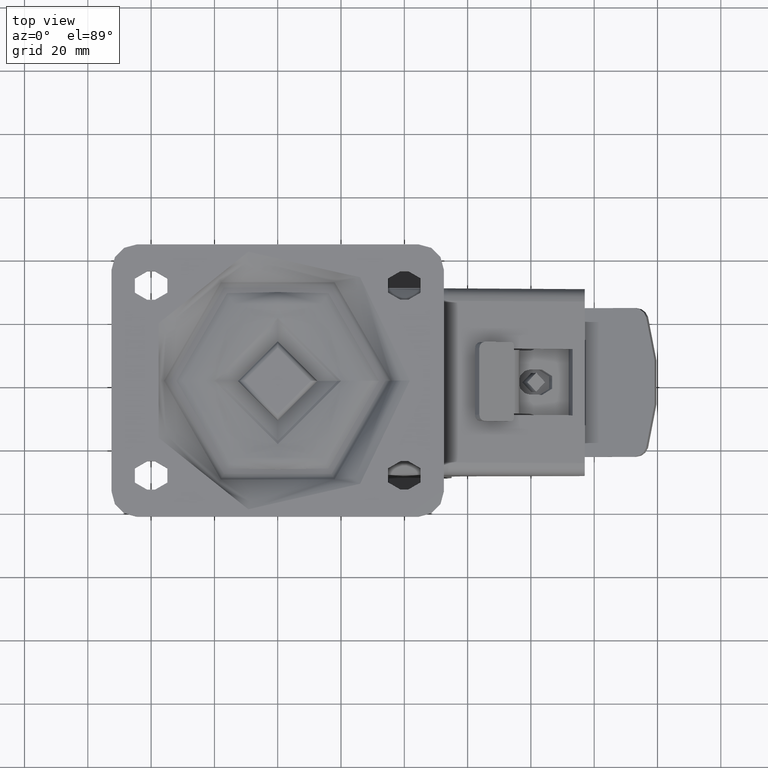
[diagram: clean part render]
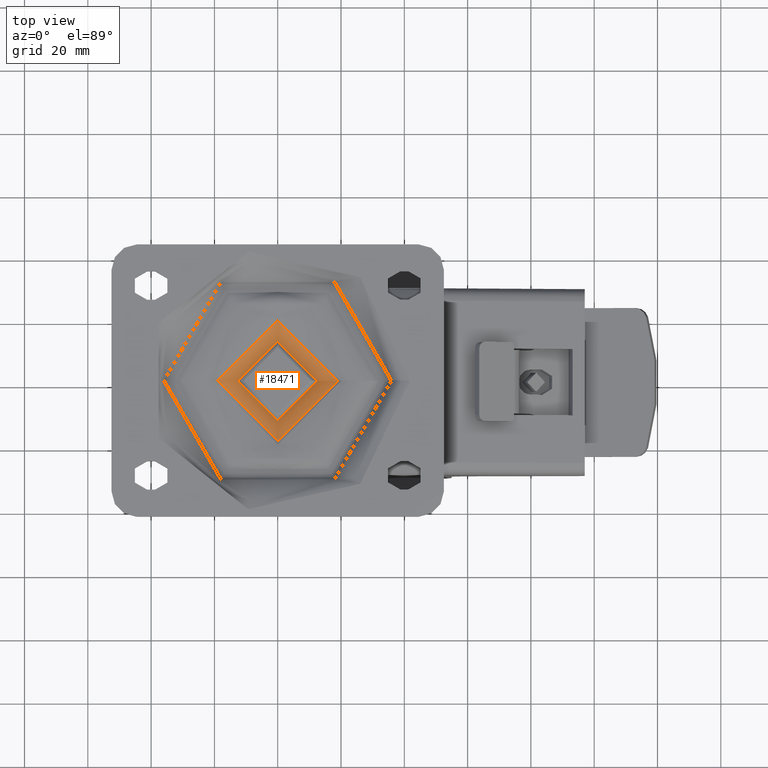
[diagram: same view with one face highlighted and labeled with its STEP entity id]
A machine part, top view. The second image highlights one B-rep face of the part: STEP entity #18471.
In plain terms, the highlighted conical surface has half-angle 69.559 deg.
Its self-contained STEP definition (entity closure, byte-faithful):
#2044=CONICAL_SURFACE('',#19886,15.75,1.21403014623623);
#2122=FACE_OUTER_BOUND('',#3262,.T.);
#3262=EDGE_LOOP('',(#12622,#12623,#12624,#12625));
#4558=LINE('',#26574,#5847);
#5847=VECTOR('',#21736,15.75);
#7147=CIRCLE('',#19885,19.);
#7148=CIRCLE('',#19887,12.5);
#7966=VERTEX_POINT('',#26568);
#7967=VERTEX_POINT('',#26572);
#9784=EDGE_CURVE('',#7966,#7966,#7147,.T.);
#9786=EDGE_CURVE('',#7967,#7967,#7148,.T.);
#9787=EDGE_CURVE('',#7967,#7966,#4558,.T.);
#12622=ORIENTED_EDGE('',*,*,#9786,.T.);
#12623=ORIENTED_EDGE('',*,*,#9787,.T.);
#12624=ORIENTED_EDGE('',*,*,#9784,.F.);
#12625=ORIENTED_EDGE('',*,*,#9787,.F.);
#18471=ADVANCED_FACE('',(#2122),#2044,.F.);
#19885=AXIS2_PLACEMENT_3D('',#26569,#21729,#21730);
#19886=AXIS2_PLACEMENT_3D('',#26571,#21732,#21733);
#19887=AXIS2_PLACEMENT_3D('',#26573,#21734,#21735);
#21729=DIRECTION('center_axis',(0.,0.,-1.));
#21730=DIRECTION('ref_axis',(-1.,0.,0.));
#21732=DIRECTION('center_axis',(0.,0.,1.));
#21733=DIRECTION('ref_axis',(-1.,0.,0.));
#21734=DIRECTION('center_axis',(0.,0.,-1.));
#21735=DIRECTION('ref_axis',(-1.,0.,0.));
#21736=DIRECTION('',(0.937031119349134,1.14753216101238E-16,0.349245875238791));
#26568=CARTESIAN_POINT('',(19.,2.32682891837997E-15,-6.57735026918963));
#26569=CARTESIAN_POINT('Origin',(0.,0.,-6.57735026918963));
#26571=CARTESIAN_POINT('Origin',(0.,0.,-7.78867513459481));
#26572=CARTESIAN_POINT('',(12.5,1.53080849893419E-15,-9.));
#26573=CARTESIAN_POINT('Origin',(0.,0.,-9.));
#26574=CARTESIAN_POINT('',(15.75,1.92881870865708E-15,-7.78867513459481));